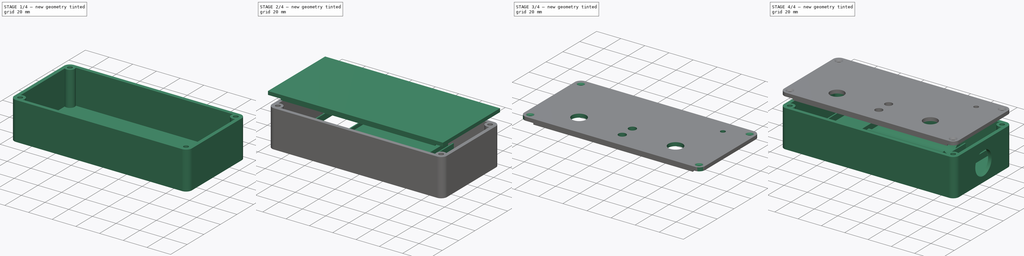
[diagram: build sequence overview — one tinted view per stage of 4, left to right]
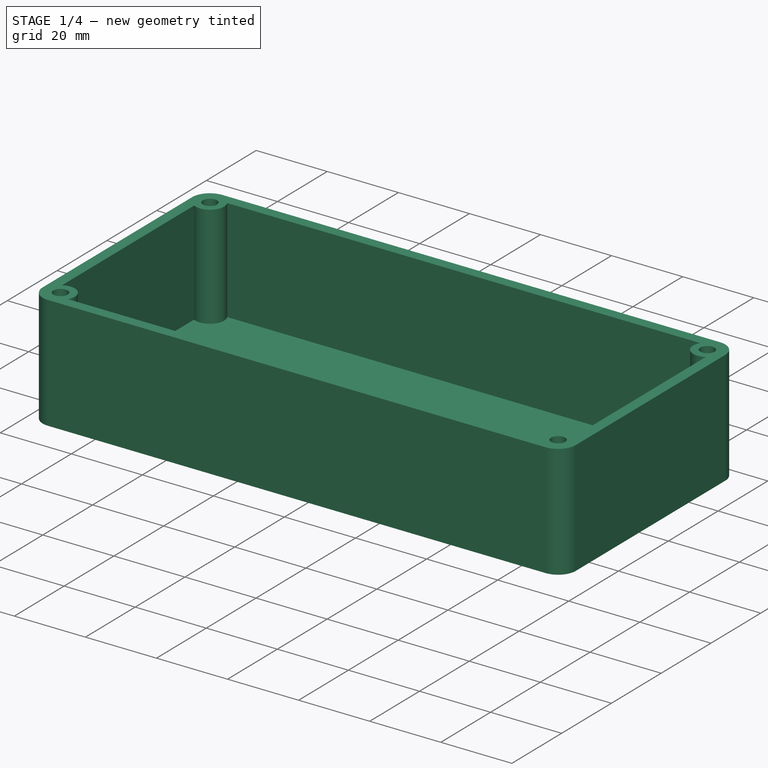
[diagram: stage 1 of 4 — iso view after this stage's code; geometry added in this stage tinted green]
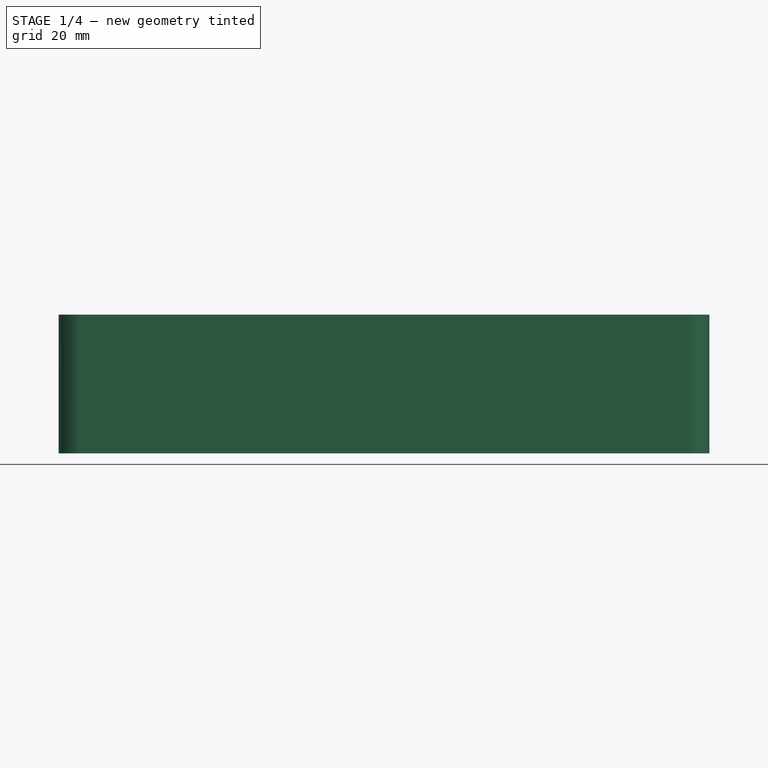
[diagram: stage 1 of 4 — front view after this stage's code; geometry added in this stage tinted green]
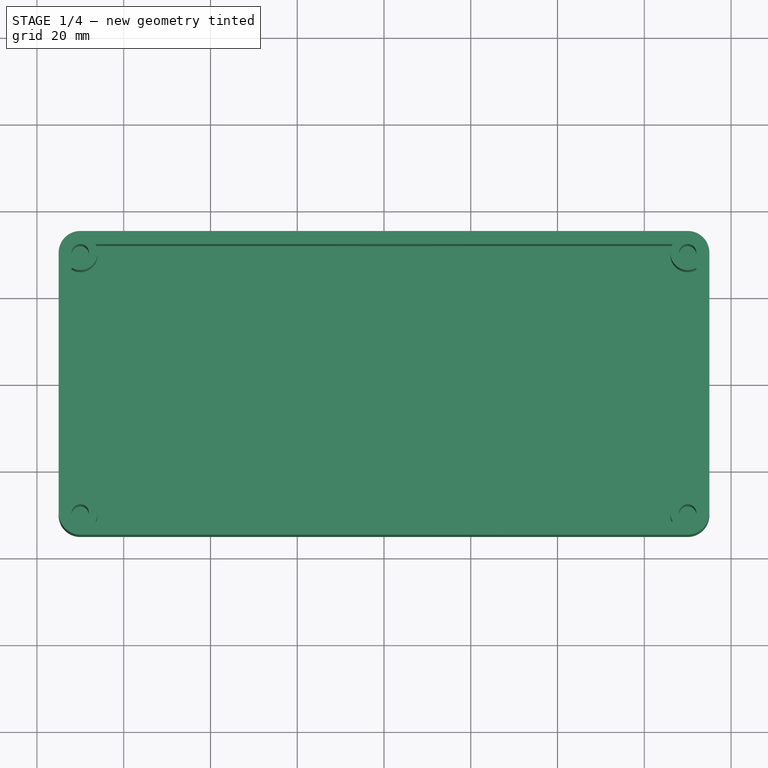
[diagram: stage 1 of 4 — top view after this stage's code; geometry added in this stage tinted green]
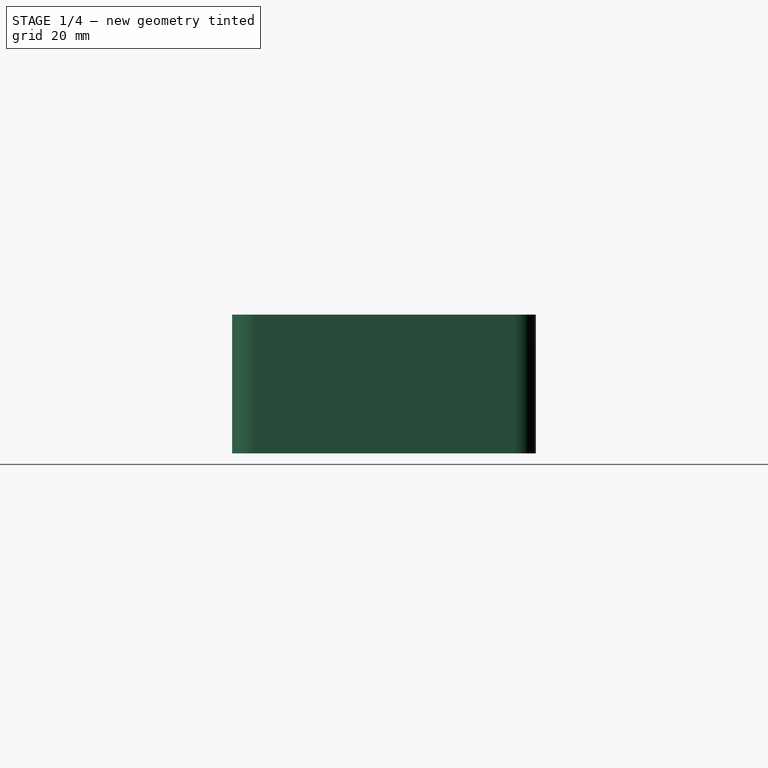
[diagram: stage 1 of 4 — right view after this stage's code; geometry added in this stage tinted green]
FCSTD DOCUMENT  (FreeCAD 1.0R39109 (Git))
Label: PageTurner
License: All rights reserved
LicenseURL: http://en.wikipedia.org/wiki/All_rights_reserved
objects: Sketcher::SketchObject×10, PartDesign::Pad×5, PartDesign::Pocket×4, PartDesign::Fillet×2, PartDesign::ShapeBinder×2, PartDesign::Body×2, Spreadsheet::Sheet×1, PartDesign::Hole×1
note: 60 computed .brp shape members not serialized (recipe doc carries the construction recipe); baked Part::Feature solids carry a one-line shape summary decoded from their .brp

FEATURE [Sketcher::SketchObject] Sketch  label="SketchBoden"
  ArcFitTolerance = 0
  AttachmentSupport = -> [XY_Plane]
  FullyConstrained = true
  MakeInternals = false
  MapMode = 5
  expr: Constraints[6] = <<Input>>.Breite
  expr: Constraints[7] = <<Input>>.Tiefe
  sketch-geometry (4):
    g0: LineSegment StartX=-75 StartY=35 StartZ=0 EndX=75 EndY=35 EndZ=0
    g1: LineSegment StartX=75 StartY=35 StartZ=0 EndX=75 EndY=-35 EndZ=0
    g2: LineSegment StartX=75 StartY=-35 StartZ=0 EndX=-75 EndY=-35 EndZ=0
    g3: LineSegment StartX=-75 StartY=-35 StartZ=0 EndX=-75 EndY=35 EndZ=0
  constraints (10):
    c: Coincident(g0,g1)
    c: Coincident(g1,g2)
    c: Coincident(g2,g3)
    c: Coincident(g3,g0)
    c: Horizontal(g2)
    c: Vertical(g1)
    c: DistanceX(g0,g0) = 150
    c: DistanceY(g1,g1) = 70
    c: Symmetric(g0,g0,g-2)
    c: Symmetric(g0,g2,g-1)
FEATURE [Spreadsheet::Sheet] Spreadsheet  label="Input"
  cells = A1='Breite; B1(Breite)=150; A2='Tiefe; B2(Tiefe)=70; A3='Höhe; B3(Hoehe)=35; A4='Dicke; B4(Dicke)=3; A5='GewindeDurchmesser; B5(GewindeD)=4; A6='SchraubeDurchmesser; B6(SchraubeD)=3; A7='Verrundung; B7(Verrundung)=5
FEATURE [PartDesign::Pad] Pad  label="PadBoden"
  Direction = (0,0,1)
  Length = 3
  Length2 = 10
  Profile = -> Sketch
  ReferenceAxis = -> Sketch [N_Axis]
  Suppressed = false
  Type = 0
  expr: Length = <<Input>>.Dicke
FEATURE [Sketcher::SketchObject] Sketch001  label="SketchRand"
  ArcFitTolerance = 0
  AttachmentSupport = -> [Pad]
  ExternalGeometry = -> [Pad]
  FullyConstrained = true
  MakeInternals = false
  MapMode = 5
  Placement = pos=(0,0,3) rot=(0,0,1;0rad)
  expr: Constraints[12] = 2 * <<Input>>.GewindeD
  expr: Constraints[13] = <<Input>>.GewindeD
  expr: Constraints[32] = <<Input>>.Dicke + <<Input>>.GewindeD / 2
  expr: Constraints[34] = <<Input>>.Dicke
  expr: Constraints[35] = <<Input>>.Dicke
  sketch-geometry (16):
    g0: LineSegment StartX=-75 StartY=35 StartZ=0 EndX=75 EndY=35 EndZ=0
    g1: LineSegment StartX=75 StartY=35 StartZ=0 EndX=75 EndY=-35 EndZ=0
    g2: LineSegment StartX=75 StartY=-35 StartZ=0 EndX=-75 EndY=-35 EndZ=0
    g3: LineSegment StartX=-75 StartY=-35 StartZ=0 EndX=-75 EndY=35 EndZ=0
    g4: LineSegment StartX=-66.5359 StartY=32 StartZ=0 EndX=66.5359 EndY=32 EndZ=0
    g5: LineSegment StartX=72 StartY=26.5359 StartZ=0 EndX=72 EndY=-26.5359 EndZ=0
    g6: LineSegment StartX=66.5359 StartY=-32 StartZ=0 EndX=-66.5359 EndY=-32 EndZ=0
    g7: ArcOfCircle CenterX=-70 CenterY=30 CenterZ=0 NormalX=0 NormalY=0 NormalZ=1 AngleXU=0 Radius=4 StartAngle=4.18879 EndAngle=6.80678
    g8: Circle CenterX=-70 CenterY=30 CenterZ=0 NormalX=0 NormalY=0 NormalZ=1 AngleXU=0 Radius=2
    g9: Circle CenterX=70 CenterY=30 CenterZ=0 NormalX=0 NormalY=0 NormalZ=1 AngleXU=0 Radius=2
    g10: ArcOfCircle CenterX=70 CenterY=30 CenterZ=0 NormalX=0 NormalY=0 NormalZ=1 AngleXU=0 Radius=4 StartAngle=2.61799 EndAngle=5.23599
    g11: ArcOfCircle CenterX=-70 CenterY=-30 CenterZ=0 NormalX=0 NormalY=0 NormalZ=1 AngleXU=0 Radius=4 StartAngle=5.75959 EndAngle=8.37758
    g12: Circle CenterX=-70 CenterY=-30 CenterZ=0 NormalX=0 NormalY=0 NormalZ=1 AngleXU=0 Radius=2
    g13: ArcOfCircle CenterX=70 CenterY=-30 CenterZ=0 NormalX=0 NormalY=0 NormalZ=1 AngleXU=0 Radius=4 StartAngle=1.0472 EndAngle=3.66519
    g14: Circle CenterX=70 CenterY=-30 CenterZ=0 NormalX=0 NormalY=0 NormalZ=1 AngleXU=0 Radius=2
    g15: LineSegment StartX=-72 StartY=-26.5359 StartZ=0 EndX=-72 EndY=26.5359 EndZ=0
  constraints (41):
    c: Coincident(g0,g1)
    c: Coincident(g1,g2)
    c: Coincident(g2,g3)
    c: Coincident(g3,g0)
    c: Horizontal(g0)
    c: Horizontal(g2)
    c: Vertical(g1)
    c: Vertical(g3)
    c: Coincident(g0,g-4)
    c: Coincident(g1,g-6)
    c: Horizontal(g6)
    c: Vertical(g5)
    c: Diameter(g7) = 8
    c: Diameter(g8) = 4
    c: Coincident(g8,g7)
    c: Coincident(g9,g10)
    c: Coincident(g12,g11)
    c: Symmetric(g9,g7,g-2)
    c: Symmetric(g7,g11,g-1)
    c: Equal(g12,g8)
    c: Equal(g9,g8)
    c: Equal(g8,g14)
    c: Equal(g7,g13)
    c: Symmetric(g13,g11,g-2)
    c: Coincident(g4,g10)
    c: Coincident(g5,g10)
    c: Coincident(g5,g13)
    c: Coincident(g6,g13)
    c: Coincident(g6,g11)
    c: Coincident(g15,g11)
    c: Coincident(g15,g7)
    c: Coincident(g4,g7)
    c: DistanceX(g0,g7) = 5
    c: DistanceY(g7,g0) = 5
    c: DistanceY(g4,g0) = 3
    c: DistanceX(g0,g7) = 3
    c: Horizontal(g4)
    c: Symmetric(g5,g7,g-2)
    c: Vertical(g15)
    c: Symmetric(g4,g6,g-1)
    c: Coincident(g14,g13)
FEATURE [PartDesign::Pad] Pad001  label="PadRand"
  BaseFeature = -> Pad
  Direction = (0,0,1)
  Length = 29
  Length2 = 10
  Profile = -> Sketch001
  ReferenceAxis = -> Sketch001 [N_Axis]
  Suppressed = false
  Type = 0
  expr: Length = <<Input>>.Hoehe - 2 * <<Input>>.Dicke
FEATURE [PartDesign::Fillet] Fillet
  Base = -> Pad001 [Edge18,Edge13,Edge12,Edge16]
  BaseFeature = -> Pad001
  Radius = 5
  SupportTransform = false
  Suppressed = false
  UseAllEdges = false
  expr: Radius = <<Input>>.Verrundung
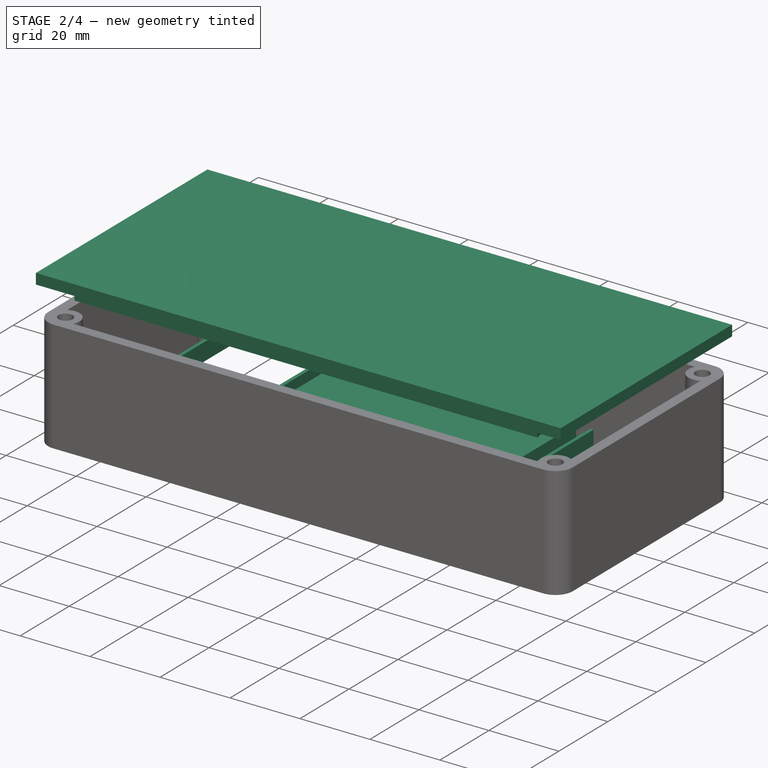
[diagram: stage 2 of 4 — iso view after this stage's code; geometry added in this stage tinted green]
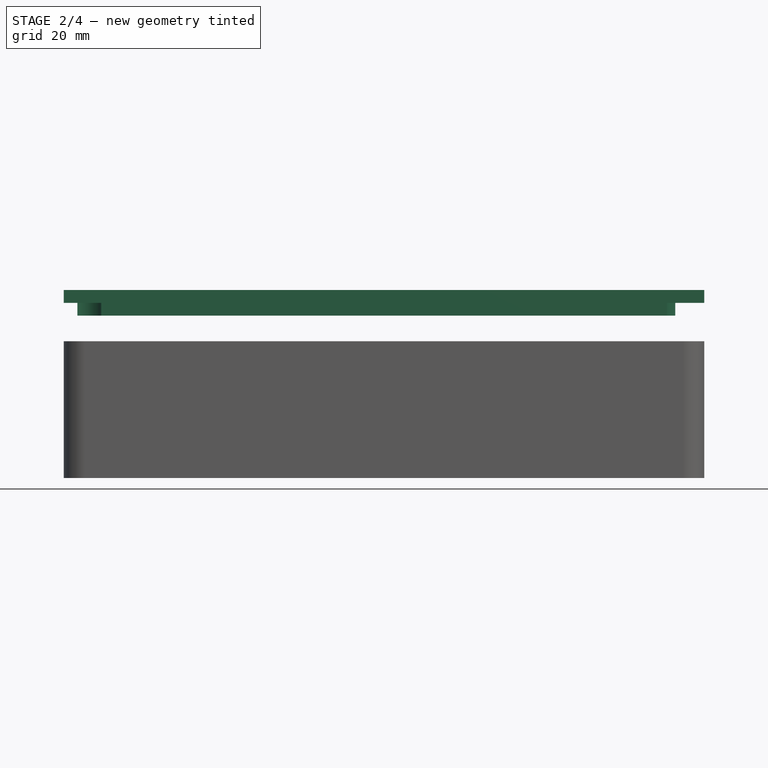
[diagram: stage 2 of 4 — front view after this stage's code; geometry added in this stage tinted green]
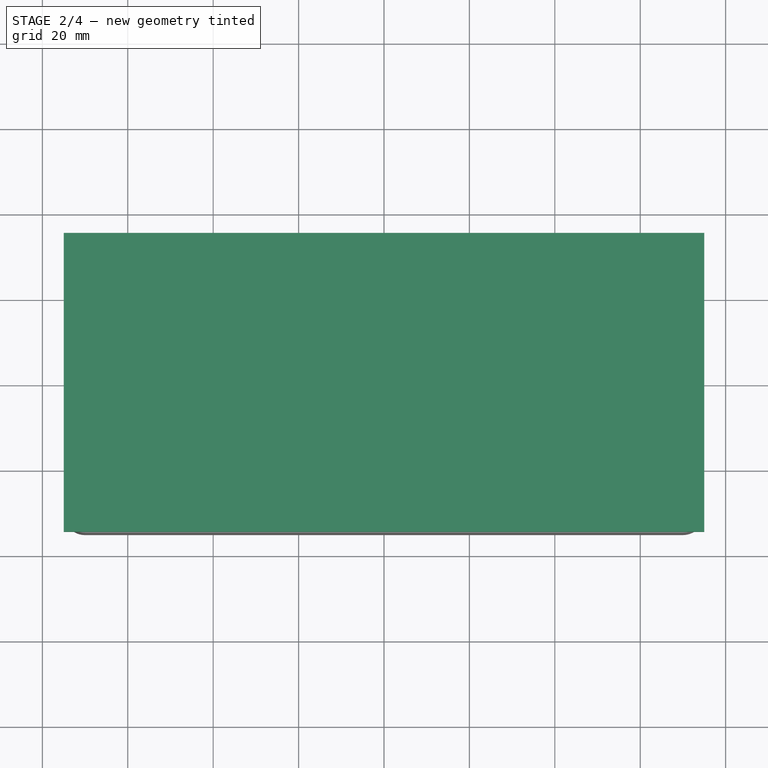
[diagram: stage 2 of 4 — top view after this stage's code; geometry added in this stage tinted green]
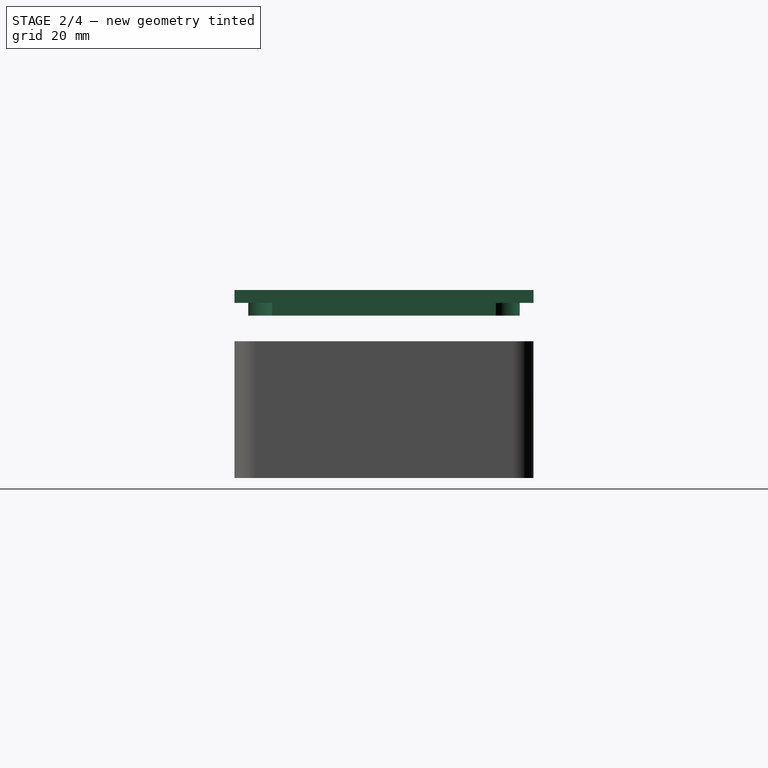
[diagram: stage 2 of 4 — right view after this stage's code; geometry added in this stage tinted green]
FEATURE [PartDesign::ShapeBinder] ShapeBinder
  Placement = pos=(0,0,29) rot=(0,0,1;0rad)
  Support = -> [Pad001]
  TraceSupport = false
FEATURE [Sketcher::SketchObject] Sketch002  label="SketchDeckel"
  ArcFitTolerance = 0
  AttachmentOffset = pos=(0,0,41) rot=(0,0,1;0rad)
  AttachmentSupport = -> [XY_Plane001]
  ExternalGeometry = -> [ShapeBinder]
  FullyConstrained = true
  MakeInternals = false
  MapMode = 5
  Placement = pos=(0,0,41) rot=(0,0,1;0rad)
  expr: .AttachmentOffset.Base.z = <<Input>>.Hoehe + <<Input>>.Dicke * 2
  sketch-geometry (4):
    g0: LineSegment StartX=-75 StartY=35 StartZ=0 EndX=75 EndY=35 EndZ=0
    g1: LineSegment StartX=75 StartY=35 StartZ=0 EndX=75 EndY=-35 EndZ=0
    g2: LineSegment StartX=75 StartY=-35 StartZ=0 EndX=-75 EndY=-35 EndZ=0
    g3: LineSegment StartX=-75 StartY=-35 StartZ=0 EndX=-75 EndY=35 EndZ=0
  constraints (10):
    c: Coincident(g0,g1)
    c: Coincident(g1,g2)
    c: Coincident(g2,g3)
    c: Coincident(g3,g0)
    c: Horizontal(g0)
    c: Horizontal(g2)
    c: Vertical(g1)
    c: Vertical(g3)
    c: Coincident(g0,g-5)
    c: Coincident(g1,g-6)
FEATURE [PartDesign::Pad] Pad002  label="PadDeckel"
  Direction = (0,0,1)
  Length = 3
  Length2 = 10
  Profile = -> Sketch002
  ReferenceAxis = -> Sketch002 [N_Axis]
  Suppressed = false
  Type = 0
  expr: Length = <<Input>>.Dicke
FEATURE [Sketcher::SketchObject] Sketch003  label="SketchRand001"
  ArcFitTolerance = 0
  AttachmentSupport = -> [Pad002]
  ExternalGeometry = -> [ShapeBinder]
  FullyConstrained = true
  MakeInternals = false
  MapMode = 5
  Placement = pos=(0,0,41) rot=(1,0,0;3.14159rad)
  expr: Constraints[13] = 2 * (<<Input>>.GewindeD + 0.2)
  expr: Constraints[28] = <<Input>>.Dicke
  expr: Constraints[29] = <<Input>>.Dicke
  expr: Constraints[30] = <<Input>>.Dicke
  expr: Constraints[31] = <<Input>>.Dicke
  expr: Constraints[38] = 2 * (<<Input>>.GewindeD + <<Input>>.Dicke + 0.2)
  sketch-geometry (16):
    g0: LineSegment StartX=-66.2053 StartY=31.8 StartZ=0 EndX=66.2053 EndY=31.8 EndZ=0
    g1: LineSegment StartX=-71.8 StartY=26.2053 StartZ=0 EndX=-71.8 EndY=-26.2053 EndZ=0
    g2: LineSegment StartX=-66.2053 StartY=-31.8 StartZ=0 EndX=66.2053 EndY=-31.8 EndZ=0
    g3: LineSegment StartX=68.2 StartY=-26.2053 StartZ=0 EndX=68.2 EndY=26.2053 EndZ=0
    g4: ArcOfCircle CenterX=-70 CenterY=30 CenterZ=0 NormalX=0 NormalY=0 NormalZ=1 AngleXU=0 Radius=4.2 StartAngle=4.26948 EndAngle=6.7261
    g5: ArcOfCircle CenterX=70 CenterY=30 CenterZ=0 NormalX=0 NormalY=0 NormalZ=1 AngleXU=0 Radius=4.2 StartAngle=2.69868 EndAngle=4.26948
    g6: ArcOfCircle CenterX=70 CenterY=-30 CenterZ=0 NormalX=0 NormalY=0 NormalZ=1 AngleXU=0 Radius=4.2 StartAngle=2.01371 EndAngle=3.5845
    g7: ArcOfCircle CenterX=-70 CenterY=-30 CenterZ=0 NormalX=0 NormalY=0 NormalZ=1 AngleXU=0 Radius=4.2 StartAngle=5.84027 EndAngle=8.29689
    g8: LineSegment StartX=-62.9007 StartY=28.8 StartZ=0 EndX=62.9007 EndY=28.8 EndZ=0
    g9: LineSegment StartX=65.2 StartY=24.6334 StartZ=0 EndX=65.2 EndY=-24.6334 EndZ=0
    g10: LineSegment StartX=62.9007 StartY=-28.8 StartZ=0 EndX=-62.9007 EndY=-28.8 EndZ=0
    g11: LineSegment StartX=-68.8 StartY=-22.9007 StartZ=0 EndX=-68.8 EndY=22.9007 EndZ=0
    g12: ArcOfCircle CenterX=-70 CenterY=30 CenterZ=0 NormalX=0 NormalY=0 NormalZ=1 AngleXU=0 Radius=7.2 StartAngle=4.87984 EndAngle=6.11574
    g13: ArcOfCircle CenterX=-70 CenterY=-30 CenterZ=0 NormalX=0 NormalY=0 NormalZ=1 AngleXU=0 Radius=7.2 StartAngle=0.167448 EndAngle=1.40335
    g14: ArcOfCircle CenterX=70 CenterY=30 CenterZ=0 NormalX=0 NormalY=0 NormalZ=1 AngleXU=0 Radius=7.2 StartAngle=3.30904 EndAngle=3.98266
    g15: ArcOfCircle CenterX=70 CenterY=-30 CenterZ=0 NormalX=0 NormalY=0 NormalZ=1 AngleXU=0 Radius=7.2 StartAngle=2.30052 EndAngle=2.97414
  constraints (48):
    c: DistanceX(g-10,g1) = 0.2
    c: Coincident(g1,g4)
    c: Coincident(g7,g2)
    c: Coincident(g6,g2)
    c: Coincident(g3,g6)
    c: Coincident(g3,g5)
    c: Coincident(g0,g5)
    c: Coincident(g0,g4)
    c: Coincident(g4,g-9)
    c: Coincident(g5,g-7)
    c: Coincident(g6,g-5)
    c: DistanceY(g-4,g2) = 0.2
    c: Coincident(g1,g7)
    c: Diameter(g7) = 8.4
    c: Coincident(g7,g-3)
    c: Vertical(g1)
    c: Vertical(g3)
    c: Horizontal(g0)
    c: Horizontal(g2)
    c: Equal(g7,g4)
    c: Equal(g7,g6)
    c: Equal(g7,g5)
    c: Horizontal(g1,g3)
    c: DistanceY(g0,g-9) = 0.2
    c: Horizontal(g8)
    c: Vertical(g9)
    c: Horizontal(g10)
    c: Vertical(g11)
    c: DistanceX(g1,g11) = 3
    c: DistanceY(g2,g10) = 3
    c: DistanceX(g9,g3) = 3
    c: DistanceY(g8,g0) = 3
    c: Coincident(g12,g4)
    c: Coincident(g12,g8)
    c: Coincident(g11,g12)
    c: Coincident(g13,g7)
    c: Coincident(g13,g11)
    c: Coincident(g13,g10)
    c: Diameter(g13) = 14.4
    c: Equal(g13,g12)
    c: Coincident(g14,g5)
    c: Coincident(g14,g8)
    c: Coincident(g14,g9)
    c: Coincident(g15,g6)
    c: Coincident(g15,g9)
    c: Coincident(g15,g10)
    c: Equal(g13,g15)
    c: Equal(g13,g14)
FEATURE [PartDesign::Pad] Pad003
  BaseFeature = -> Pad002
  Direction = (0,0,-1)
  Length = 3
  Length2 = 10
  Profile = -> Sketch003
  ReferenceAxis = -> Sketch003 [N_Axis]
  Suppressed = false
  Type = 0
  expr: Length = <<Input>>.Dicke
FEATURE [Sketcher::SketchObject] Sketch005  label="SketchMontageRahmen"
  ArcFitTolerance = 0
  AttachmentSupport = -> [Fillet]
  ExternalGeometry = -> [Fillet]
  FullyConstrained = true
  MakeInternals = false
  MapMode = 5
  Placement = pos=(0,0,3) rot=(0,0,1;0rad)
  sketch-geometry (28):
    g0: LineSegment StartX=-32.5 StartY=32 StartZ=0 EndX=32.5 EndY=32 EndZ=0
    g1: LineSegment StartX=32.5 StartY=32 StartZ=0 EndX=32.5 EndY=-8 EndZ=0
    g2: LineSegment StartX=32.5 StartY=-8 StartZ=0 EndX=-32.5 EndY=-8 EndZ=0
    g3: LineSegment StartX=-32.5 StartY=-8 StartZ=0 EndX=-32.5 EndY=32 EndZ=0
    g4: LineSegment StartX=-66 StartY=32 StartZ=0 EndX=-36 EndY=32 EndZ=0
    g5: LineSegment StartX=-36 StartY=32 StartZ=0 EndX=-36 EndY=-24 EndZ=0
    g6: LineSegment StartX=-36 StartY=-24 StartZ=0 EndX=-66 EndY=-24 EndZ=0
    g7: LineSegment StartX=-66 StartY=-24 StartZ=0 EndX=-66 EndY=32 EndZ=0
    g8: LineSegment StartX=-65 StartY=32 StartZ=0 EndX=-37 EndY=32 EndZ=0
    g9: LineSegment StartX=-37 StartY=32 StartZ=0 EndX=-37 EndY=-23 EndZ=0
    g10: LineSegment StartX=-37 StartY=-23 StartZ=0 EndX=-65 EndY=-23 EndZ=0
    g11: LineSegment StartX=-65 StartY=-23 StartZ=0 EndX=-65 EndY=32 EndZ=0
    g12: LineSegment StartX=37.5 StartY=32 StartZ=0 EndX=55 EndY=32 EndZ=0
    g13: LineSegment StartX=55 StartY=32 StartZ=0 EndX=55 EndY=4 EndZ=0
    g14: LineSegment StartX=55 StartY=4 StartZ=0 EndX=37.5 EndY=4 EndZ=0
    g15: LineSegment StartX=37.5 StartY=4 StartZ=0 EndX=37.5 EndY=32 EndZ=0
    g16: LineSegment StartX=36.5 StartY=32 StartZ=0 EndX=56 EndY=32 EndZ=0
    g17: LineSegment StartX=56 StartY=32 StartZ=0 EndX=56 EndY=3 EndZ=0
    g18: LineSegment StartX=56 StartY=3 StartZ=0 EndX=36.5 EndY=3 EndZ=0
    g19: LineSegment StartX=36.5 StartY=3 StartZ=0 EndX=36.5 EndY=32 EndZ=0
    g20: LineSegment StartX=-12.75 StartY=-13 StartZ=0 EndX=12.75 EndY=-13 EndZ=0
    g21: LineSegment StartX=12.75 StartY=-13 StartZ=0 EndX=12.75 EndY=-31 EndZ=0
    g22: LineSegment StartX=12.75 StartY=-31 StartZ=0 EndX=-12.75 EndY=-31 EndZ=0
    g23: LineSegment StartX=-12.75 StartY=-31 StartZ=0 EndX=-12.75 EndY=-13 EndZ=0
    g24: LineSegment StartX=-13.75 StartY=-12 StartZ=0 EndX=13.75 EndY=-12 EndZ=0
    g25: LineSegment StartX=13.75 StartY=-12 StartZ=0 EndX=13.75 EndY=-32 EndZ=0
    g26: LineSegment StartX=13.75 StartY=-32 StartZ=0 EndX=-13.75 EndY=-32 EndZ=0
    g27: LineSegment StartX=-13.75 StartY=-32 StartZ=0 EndX=-13.75 EndY=-12 EndZ=0
  constraints (82):
    c: Coincident(g0,g1)
    c: Coincident(g1,g2)
    c: Coincident(g2,g3)
    c: Coincident(g3,g0)
    c: Horizontal(g0)
    c: Vertical(g1)
    c: Vertical(g3)
    c: PointOnObject(g0,g-3)
    c: Symmetric(g2,g1,g-2)
    c: DistanceX(g2,g2) = 65
    c: DistanceY(g3,g3) = 40
    c: Coincident(g4,g5)
    c: Coincident(g5,g6)
    c: Coincident(g6,g7)
    c: Coincident(g7,g4)
    c: Horizontal(g4)
    c: Horizontal(g6)
    c: Vertical(g5)
    c: Vertical(g7)
    c: PointOnObject(g4,g-3)
    c: Coincident(g8,g9)
    c: Coincident(g9,g10)
    c: Coincident(g10,g11)
    c: Coincident(g11,g8)
    c: Horizontal(g8)
    c: Horizontal(g10)
    c: Vertical(g9)
    c: Vertical(g11)
    c: PointOnObject(g8,g4)
    c: DistanceX(g10,g10) = 28
    c: DistanceX(g6,g10) = 1
    c: DistanceX(g9,g5) = 1
    c: DistanceY(g6,g10) = 1
    c: DistanceY(g11,g11) = 55
    c: DistanceX(g-4,g4) = 4
    c: Coincident(g12,g13)
    c: Coincident(g13,g14)
    c: Coincident(g14,g15)
    c: Coincident(g15,g12)
    c: Horizontal(g12)
    c: Horizontal(g14)
    c: Vertical(g13)
    c: Vertical(g15)
    c: PointOnObject(g12,g-3)
    c: Coincident(g16,g17)
    c: Coincident(g17,g18)
    c: Coincident(g18,g19)
    c: Coincident(g19,g16)
    c: Horizontal(g16)
    c: Horizontal(g18)
    c: Vertical(g17)
    c: Vertical(g19)
    c: PointOnObject(g16,g-3)
    c: DistanceX(g14,g14) = 17.5
    c: DistanceY(g13,g13) = 28
    c: DistanceX(g13,g17) = 1
    c: DistanceX(g18,g14) = 1
    c: DistanceY(g18,g14) = 1
    c: Coincident(g20,g21)
    c: Coincident(g21,g22)
    c: Coincident(g22,g23)
    c: Coincident(g23,g20)
    c: Horizontal(g22)
    c: Vertical(g21)
    c: Vertical(g23)
    c: Coincident(g24,g25)
    c: Coincident(g25,g26)
    c: Coincident(g26,g27)
    c: Coincident(g27,g24)
    c: Horizontal(g24)
    c: Horizontal(g26)
    c: Vertical(g25)
    c: Vertical(g27)
    c: DistanceX(g20,g20) = 25.5
    c: DistanceY(g23,g23) = 18
    c: DistanceY(g20,g24) = 1
    c: DistanceY(g26,g22) = 1
    c: DistanceX(g26,g22) = 1
    c: DistanceX(g21,g25) = 1
    c: Symmetric(g20,g20,g-2)
    c: PointOnObject(g26,g-6)
    c: DistanceX(g1,g18) = 4
FEATURE [PartDesign::Pad] Pad004
  BaseFeature = -> Fillet
  Direction = (0,0,1)
  Length = 5
  Length2 = 10
  Profile = -> Sketch005
  ReferenceAxis = -> Sketch005 [N_Axis]
  Suppressed = false
  Type = 0
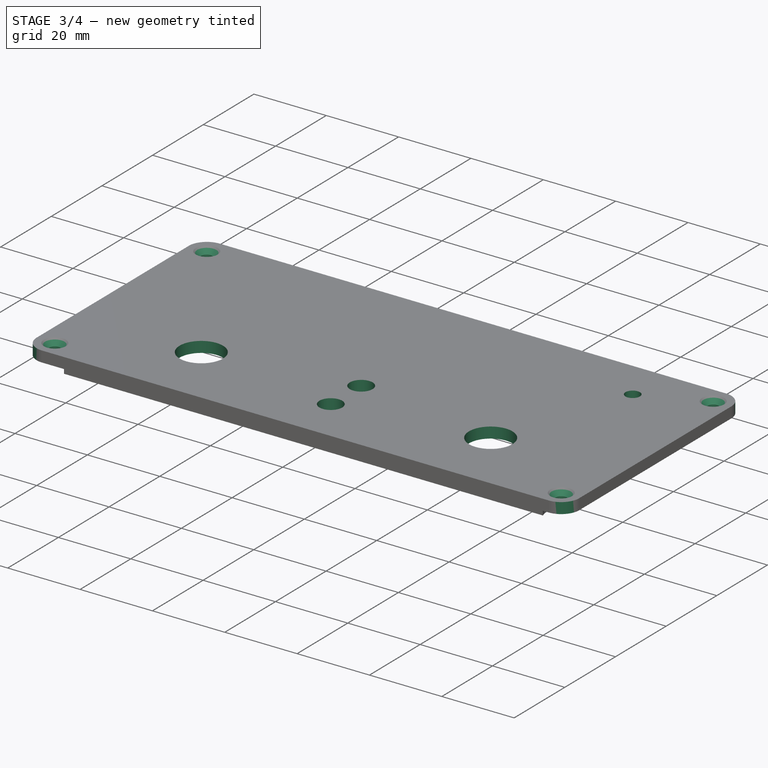
[diagram: stage 3 of 4 — iso view after this stage's code; geometry added in this stage tinted green]
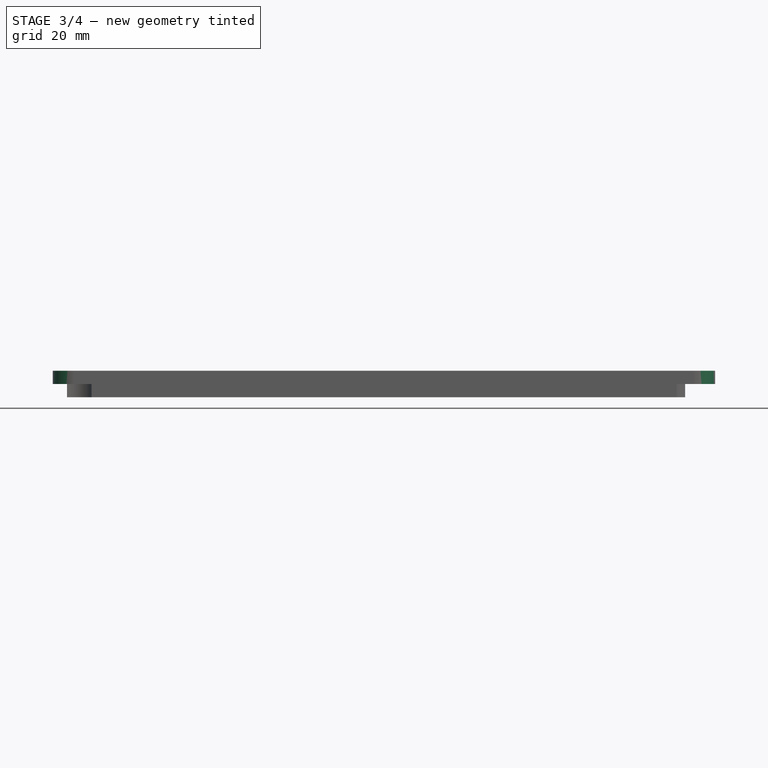
[diagram: stage 3 of 4 — front view after this stage's code; geometry added in this stage tinted green]
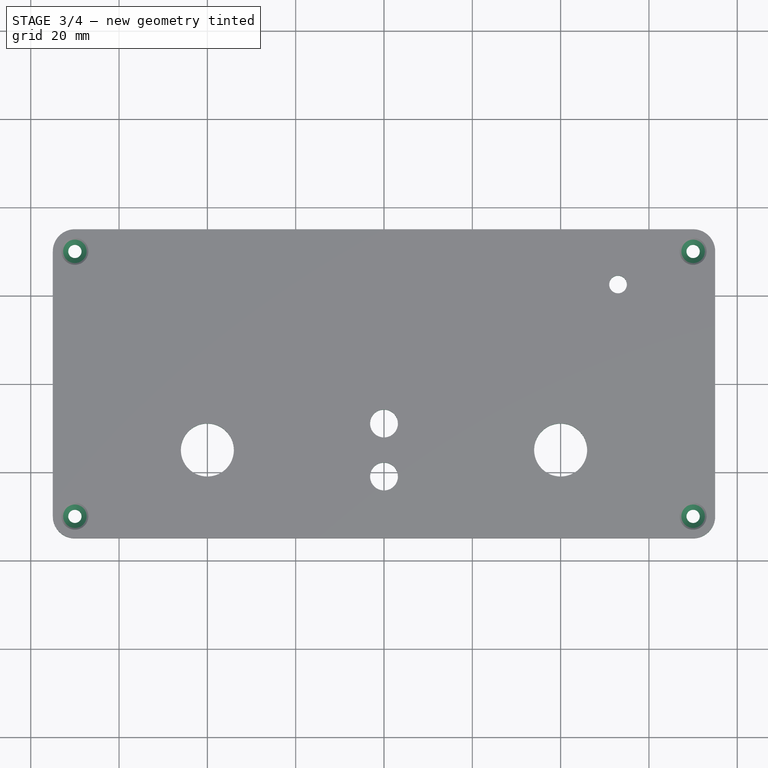
[diagram: stage 3 of 4 — top view after this stage's code; geometry added in this stage tinted green]
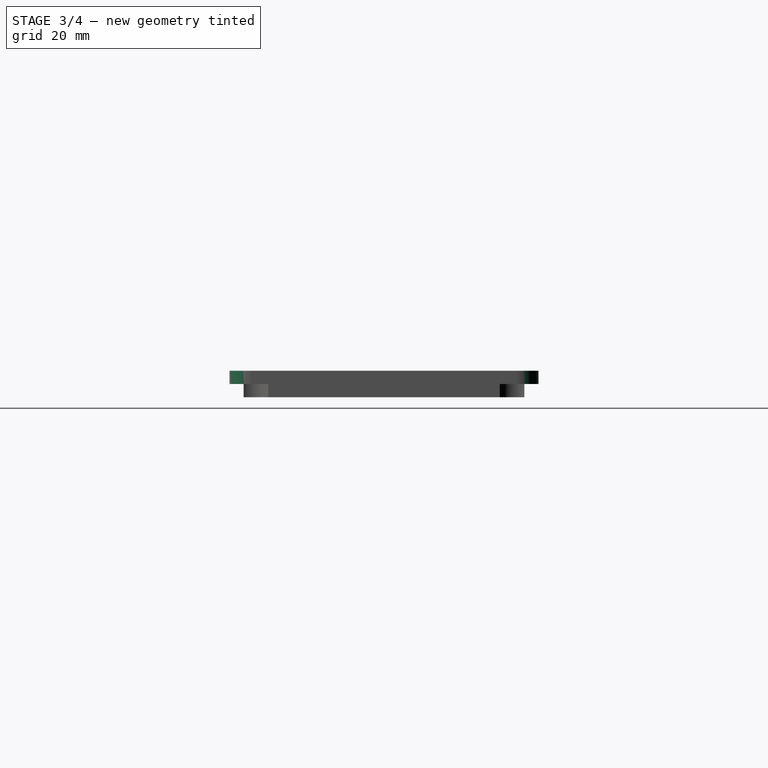
[diagram: stage 3 of 4 — right view after this stage's code; geometry added in this stage tinted green]
FEATURE [Sketcher::SketchObject] Sketch004
  ArcFitTolerance = 0
  AttachmentSupport = -> [Pad003]
  ExternalGeometry = -> [ShapeBinder]
  FullyConstrained = false
  MakeInternals = false
  MapMode = 5
  Placement = pos=(0,0,44) rot=(0,0,1;0rad)
  sketch-geometry (4):
    g0: Circle CenterX=-70 CenterY=30 CenterZ=0 NormalX=0 NormalY=0 NormalZ=1 AngleXU=0 Radius=2
    g1: Circle CenterX=70 CenterY=30 CenterZ=0 NormalX=0 NormalY=0 NormalZ=1 AngleXU=0 Radius=2
    g2: Circle CenterX=70 CenterY=-30 CenterZ=0 NormalX=0 NormalY=0 NormalZ=1 AngleXU=0 Radius=2
    g3: Circle CenterX=-70 CenterY=-30 CenterZ=0 NormalX=0 NormalY=0 NormalZ=1 AngleXU=0 Radius=2
  constraints (4):
    c: Coincident(g0,g-3)
    c: Coincident(g1,g-4)
    c: Coincident(g2,g-5)
    c: Coincident(g3,g-6)
FEATURE [PartDesign::Hole] Hole
  BaseFeature = -> Pad003
  CustomThreadClearance = 0
  Depth = 25
  DepthType = 0
  Diameter = 3
  DrillForDepth = false
  DrillPoint = 1
  DrillPointAngle = 118
  HoleCutCountersinkAngle = 90
  HoleCutCustomValues = false
  HoleCutDepth = 0
  HoleCutDiameter = 6.1
  HoleCutType = 2
  ModelThread = false
  Profile = -> Sketch004
  Suppressed = false
  Tapered = false
  TaperedAngle = 90
  ThreadClass = 0
  ThreadDepth = 25
  ThreadDepthType = 0
  ThreadDirection = 0
  ThreadFit = 0
  ThreadSize = 0
  ThreadType = 0
  Threaded = false
  UseCustomThreadClearance = false
FEATURE [PartDesign::Fillet] Fillet001
  Base = -> Hole [Edge5,Edge8,Edge1,Edge2]
  BaseFeature = -> Hole
  Radius = 5
  SupportTransform = false
  Suppressed = false
  UseAllEdges = false
  expr: Radius = <<Input>>.Verrundung
FEATURE [PartDesign::Body] Body  label="Box"
  AllowCompound = false
  Group = -> [Sketch,Pad,Sketch001,Pad001,Fillet,Sketch005,Pad004,Sketch006,Sketch007,Pocket,Pocket001,Sketch008,Pocket002]
  Origin = -> Origin
  Tip = -> Pocket002
FEATURE [PartDesign::ShapeBinder] ShapeBinder001
  Placement = pos=(0,0,5) rot=(0,0,1;0rad)
  Support = -> [Pad004]
  TraceSupport = false
FEATURE [Sketcher::SketchObject] Sketch009
  ArcFitTolerance = 0
  AttachmentSupport = -> [Fillet001]
  ExternalGeometry = -> [ShapeBinder001,ShapeBinder]
  FullyConstrained = true
  MakeInternals = false
  MapMode = 5
  Placement = pos=(0,0,44) rot=(0,0,1;0rad)
  sketch-geometry (6):
    g0: Circle CenterX=40 CenterY=-15 CenterZ=0 NormalX=0 NormalY=0 NormalZ=1 AngleXU=0 Radius=6
    g1: Circle CenterX=-40 CenterY=-15 CenterZ=0 NormalX=0 NormalY=0 NormalZ=1 AngleXU=0 Radius=6
    g2: Circle CenterX=0 CenterY=-9 CenterZ=0 NormalX=0 NormalY=0 NormalZ=1 AngleXU=0 Radius=3.15
    g3: Circle CenterX=0 CenterY=-21 CenterZ=0 NormalX=0 NormalY=0 NormalZ=1 AngleXU=0 Radius=3.15
    g4: GeomPoint [constr] X=0 Y=-15 Z=0
    g5: Circle CenterX=53 CenterY=22.5 CenterZ=0 NormalX=0 NormalY=0 NormalZ=1 AngleXU=0 Radius=2
  constraints (16):
    c: DistanceX(g1,g0) = 80
    c: Symmetric(g1,g0,g-2)
    c: DistanceY(g1,g-1) = 15
    c: Diameter(g1) = 12
    c: Equal(g1,g0)
    c: PointOnObject(g2,g-2)
    c: PointOnObject(g3,g-2)
    c: PointOnObject(g4,g-2)
    c: Horizontal(g0,g4)
    c: Diameter(g3) = 6.3
    c: Equal(g3,g2)
    c: DistanceY(g3,g4) = 6
    c: DistanceY(g4,g2) = 6
    c: Diameter(g5) = 4
    c: DistanceY(g5,g-4) = 9.5
    c: DistanceX(g5,g-3) = 2
FEATURE [PartDesign::Pocket] Pocket003
  BaseFeature = -> Fillet001
  Direction = (0,0,-1)
  Length = 5
  Length2 = 5
  Profile = -> Sketch009
  ReferenceAxis = -> Sketch009 [N_Axis]
  Suppressed = false
  Type = 0
FEATURE [PartDesign::Body] Body001  label="Deckel"
  AllowCompound = false
  Group = -> [Sketch002,ShapeBinder,Pad002,Sketch003,Pad003,Sketch004,Hole,Fillet001,Sketch009,Pocket003,ShapeBinder001]
  Origin = -> Origin001
  Tip = -> Pocket003
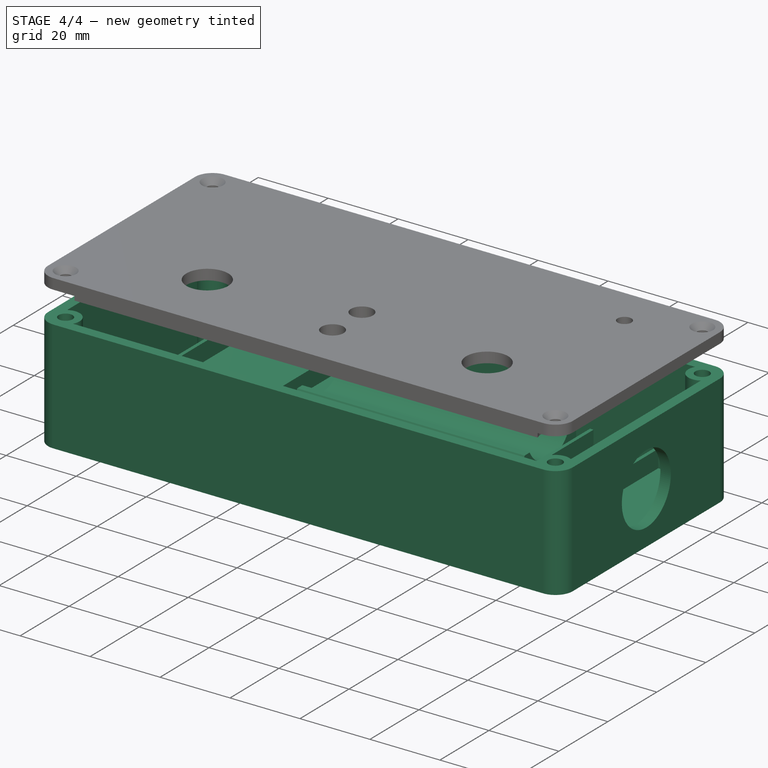
[diagram: stage 4 of 4 — iso view after this stage's code; geometry added in this stage tinted green]
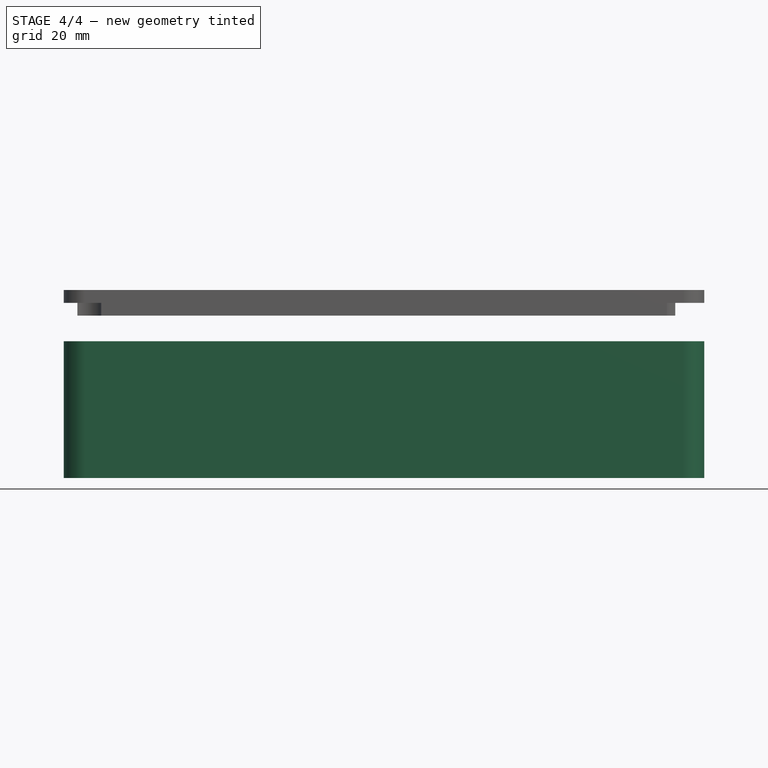
[diagram: stage 4 of 4 — front view after this stage's code; geometry added in this stage tinted green]
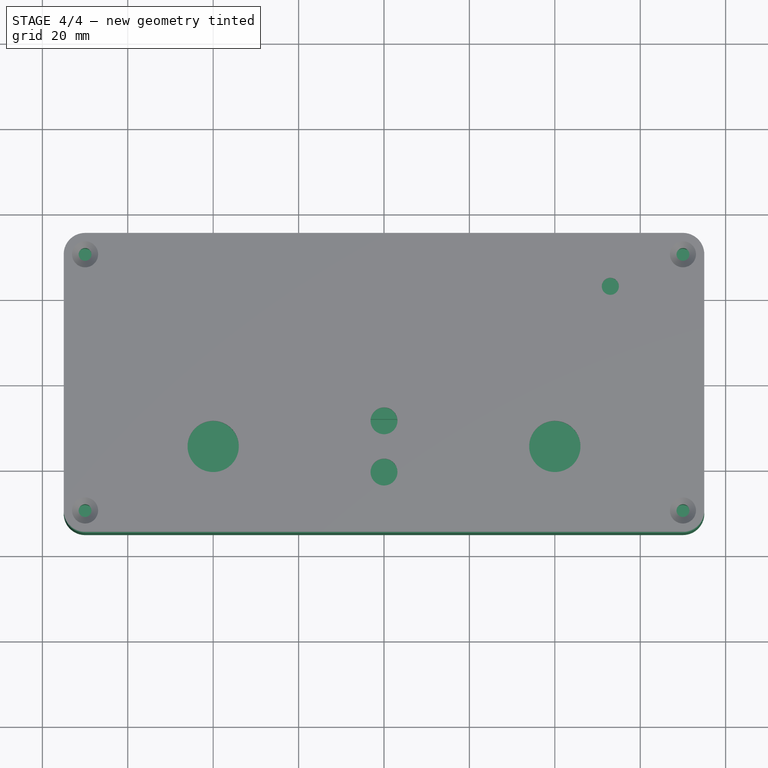
[diagram: stage 4 of 4 — top view after this stage's code; geometry added in this stage tinted green]
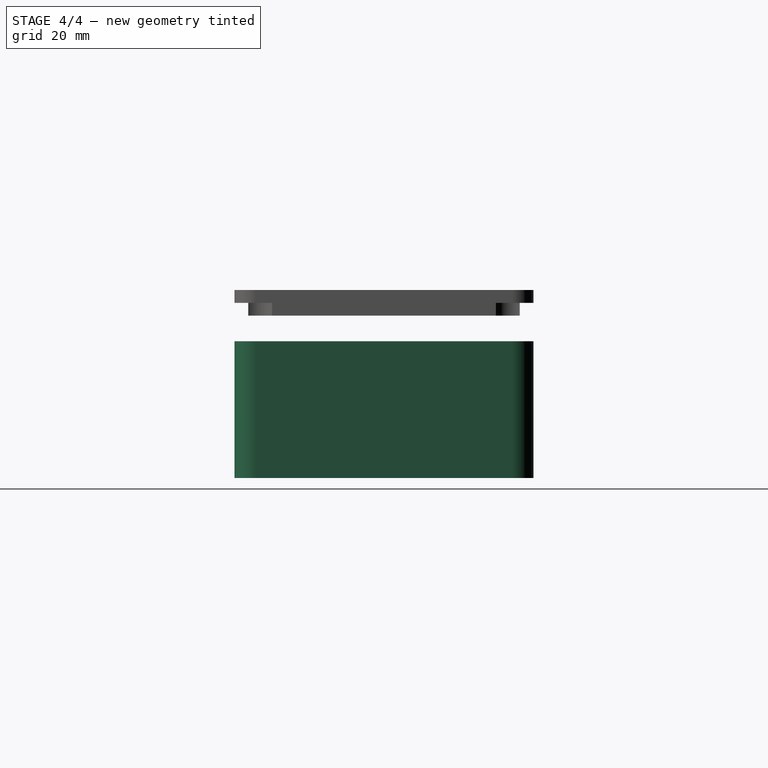
[diagram: stage 4 of 4 — right view after this stage's code; geometry added in this stage tinted green]
FEATURE [Sketcher::SketchObject] Sketch006  label="SketchBatterieHalter"
  ArcFitTolerance = 0
  AttachmentSupport = -> [Pad004]
  ExternalGeometry = -> [Sketch005]
  FullyConstrained = true
  MakeInternals = false
  MapMode = 5
  Placement = pos=(32.5,0,0) rot=(0.57735,0.57735,0.57735;2.0944rad)
  sketch-geometry (2):
    g0: Circle CenterX=3 CenterY=12.1 CenterZ=0 NormalX=0 NormalY=0 NormalZ=1 AngleXU=0 Radius=9
    g1: Circle CenterX=21.1 CenterY=12.1 CenterZ=0 NormalX=0 NormalY=0 NormalZ=1 AngleXU=0 Radius=9
  constraints (6):
    c: Horizontal(g0,g1)
    c: Equal(g0,g1)
    c: Diameter(g0) = 18
    c: DistanceX(g0,g1) = 18.1
    c: DistanceY(g-3,g0) = 9.1
    c: DistanceX(g-3,g0) = 11
FEATURE [Sketcher::SketchObject] Sketch007  label="SketchEinAusSchalter"
  ArcFitTolerance = 0
  AttachmentSupport = -> [Pad004]
  FullyConstrained = true
  MakeInternals = false
  MapMode = 5
  Placement = pos=(75,0,0) rot=(0.57735,0.57735,0.57735;2.0944rad)
  sketch-geometry (1):
    g0: Circle CenterX=0 CenterY=15 CenterZ=0 NormalX=0 NormalY=0 NormalZ=1 AngleXU=0 Radius=10
  constraints (3):
    c: PointOnObject(g0,g-2)
    c: Diameter(g0) = 20
    c: DistanceY(g-1,g0) = 15
FEATURE [PartDesign::Pocket] Pocket
  BaseFeature = -> Pad004
  Direction = (-1,0,0)
  Length = 65
  Length2 = 5
  Profile = -> Sketch006
  ReferenceAxis = -> Sketch006 [N_Axis]
  Suppressed = false
  Type = 0
FEATURE [PartDesign::Pocket] Pocket001
  BaseFeature = -> Pocket
  Direction = (-1,0,0)
  Length = 5
  Length2 = 5
  Profile = -> Sketch007
  ReferenceAxis = -> Sketch007 [N_Axis]
  Suppressed = false
  Type = 0
FEATURE [Sketcher::SketchObject] Sketch008
  ArcFitTolerance = 0
  AttachmentSupport = -> [Pocket001]
  ExternalGeometry = -> [Sketch005]
  FullyConstrained = true
  MakeInternals = false
  MapMode = 5
  Placement = pos=(0,35,0) rot=(0,0.707107,0.707107;3.14159rad)
  sketch-geometry (10):
    g0: LineSegment StartX=-50.25 StartY=7.2 StartZ=0 EndX=-42.25 EndY=7.2 EndZ=0
    g1: LineSegment StartX=-42.25 StartY=7.2 StartZ=0 EndX=-42.25 EndY=4.2 EndZ=0
    g2: LineSegment StartX=-42.25 StartY=4.2 StartZ=0 EndX=-50.25 EndY=4.2 EndZ=0
    g3: LineSegment StartX=-50.25 StartY=4.2 StartZ=0 EndX=-50.25 EndY=7.2 EndZ=0
    g4: LineSegment [constr] StartX=-46.25 StartY=3 StartZ=0 EndX=-46.25 EndY=4.2 EndZ=0
    g5: LineSegment [constr] StartX=51 StartY=3 StartZ=0 EndX=51 EndY=4.7 EndZ=0
    g6: LineSegment StartX=47 StartY=7.7 StartZ=0 EndX=55 EndY=7.7 EndZ=0
    g7: LineSegment StartX=55 StartY=7.7 StartZ=0 EndX=55 EndY=4.7 EndZ=0
    g8: LineSegment StartX=55 StartY=4.7 StartZ=0 EndX=47 EndY=4.7 EndZ=0
    g9: LineSegment StartX=47 StartY=4.7 StartZ=0 EndX=47 EndY=7.7 EndZ=0
  constraints (28):
    c: Coincident(g0,g1)
    c: Coincident(g1,g2)
    c: Coincident(g2,g3)
    c: Coincident(g3,g0)
    c: Horizontal(g0)
    c: Vertical(g1)
    c: Vertical(g3)
    c: DistanceY(g3,g3) = 3
    c: DistanceX(g0,g0) = 8
    c: PointOnObject(g4,g-4)
    c: Symmetric(g-4,g-4,g4)
    c: Symmetric(g2,g1,g4)
    c: DistanceY(g4,g4) = 1.2
    c: PointOnObject(g5,g-3)
    c: Symmetric(g-3,g-3,g5)
    c: DistanceY(g5,g5) = 1.7
    c: Coincident(g6,g7)
    c: Coincident(g7,g8)
    c: Coincident(g8,g9)
    c: Coincident(g9,g6)
    c: Horizontal(g6)
    c: Vertical(g7)
    c: Vertical(g9)
    c: Symmetric(g8,g7,g5)
    c: Horizontal(g8,g5)
    c: DistanceY(g9,g9) = 3
    c: DistanceX(g6,g6) = 8
    c: Horizontal(g2,g4)
FEATURE [PartDesign::Pocket] Pocket002
  BaseFeature = -> Pocket001
  Direction = (0,-1,2e-16)
  Length = 3
  Length2 = 5
  Profile = -> Sketch008
  ReferenceAxis = -> Sketch008 [N_Axis]
  Suppressed = false
  Type = 0
  expr: Length = <<Input>>.Dicke
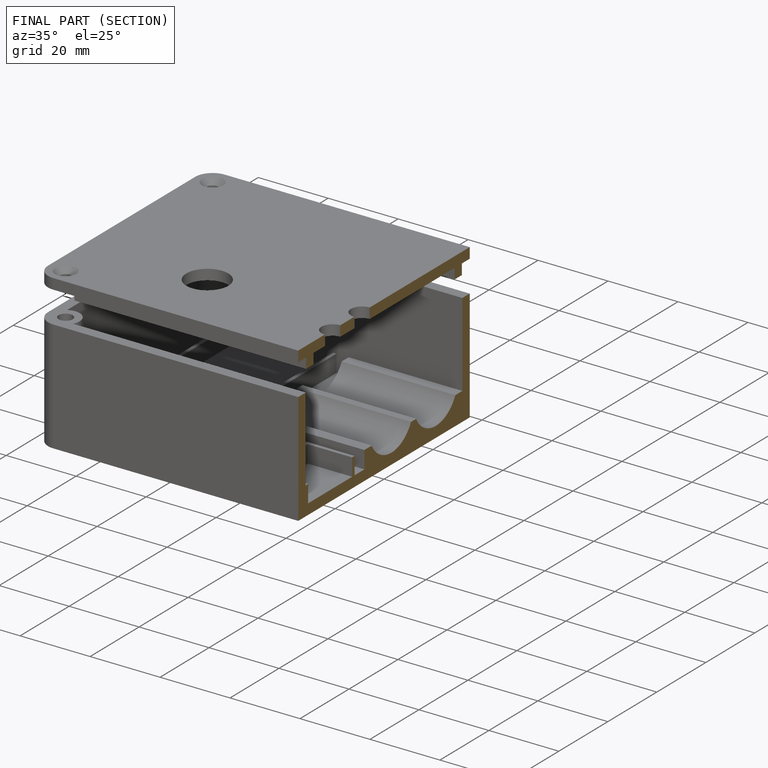
[diagram: finished part — half-section view (interior)]
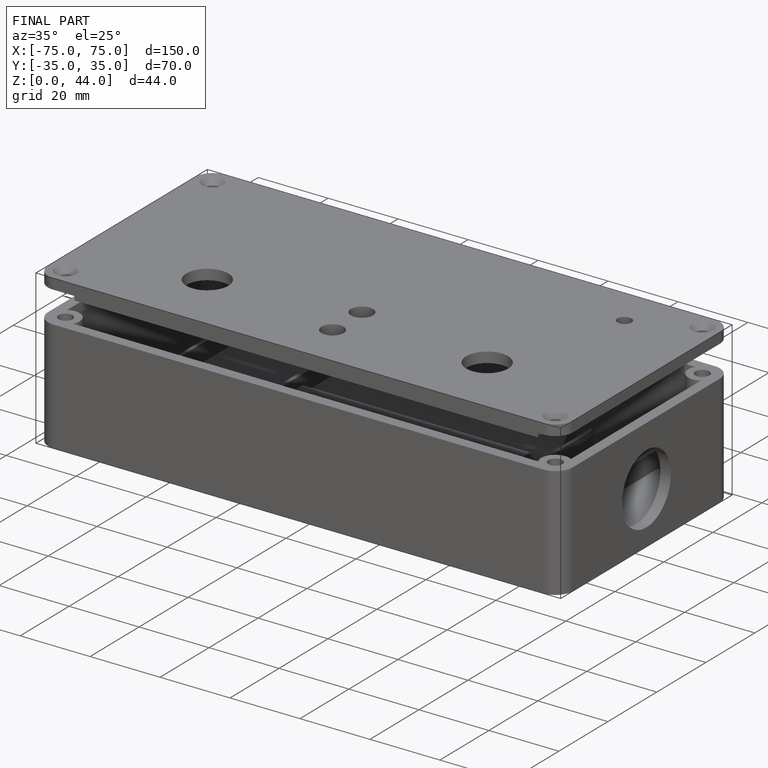
[diagram: finished part — iso view with bounding-box wireframe]
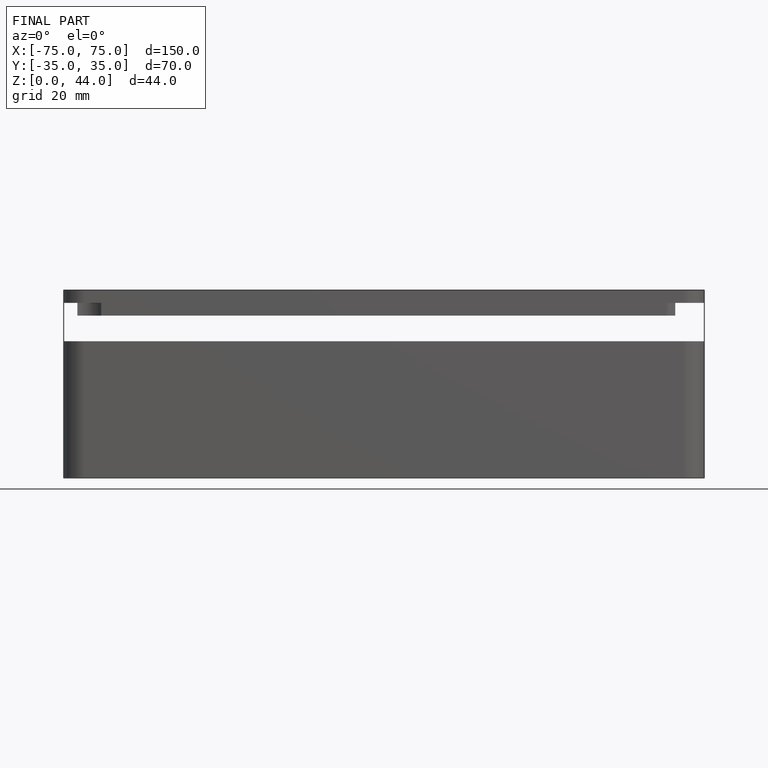
[diagram: finished part — front view with bounding-box wireframe]
